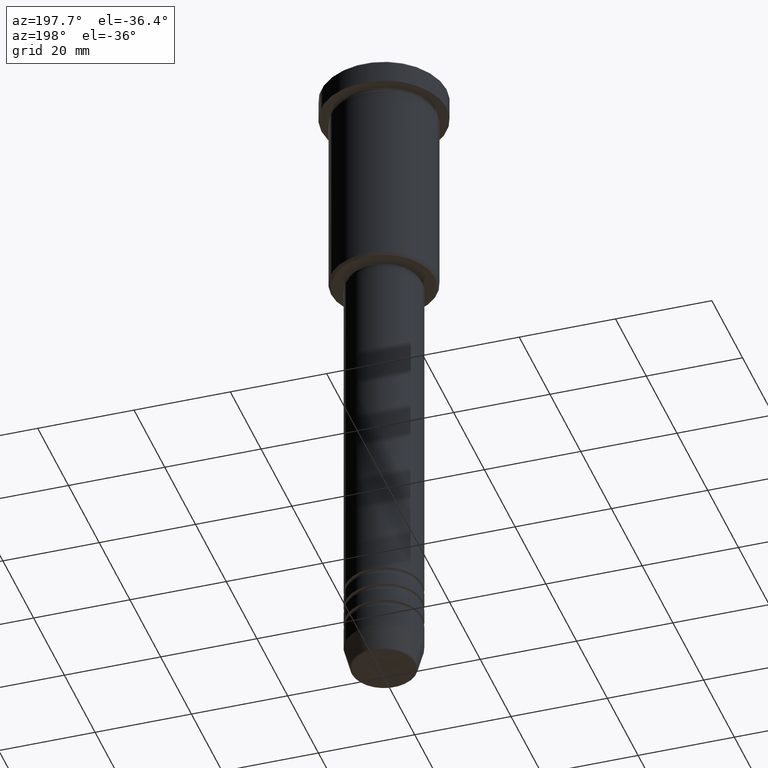
[diagram: clean part render]
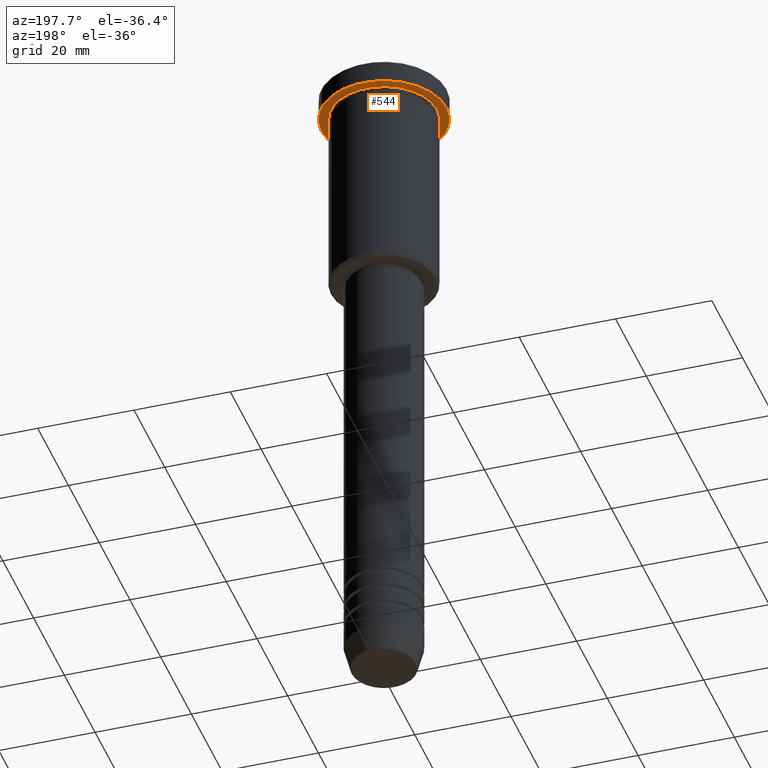
[diagram: same view with one face highlighted and labeled with its STEP entity id]
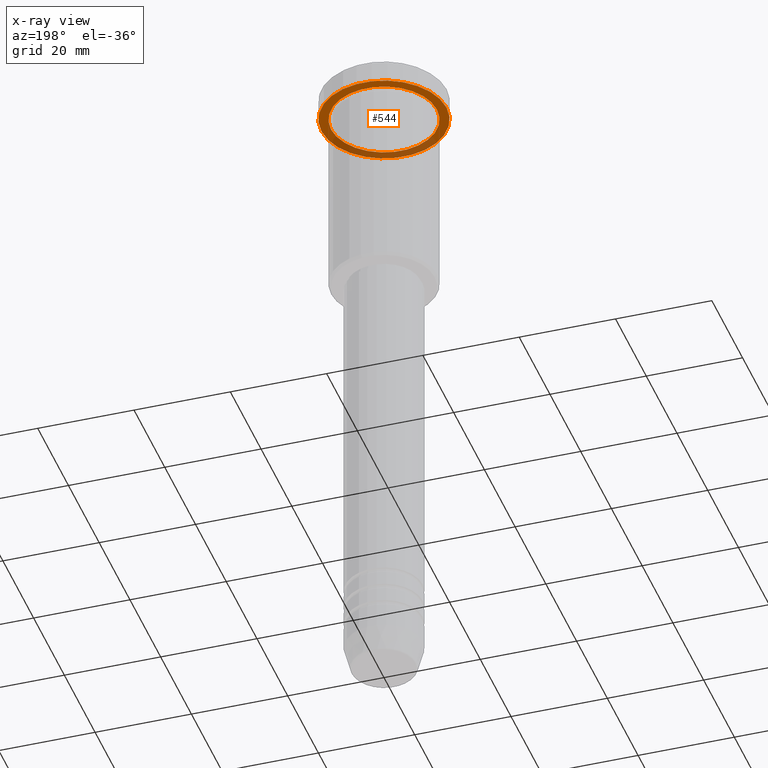
[diagram: x-ray of the same camera — body ghosted, the highlighted face saturated]
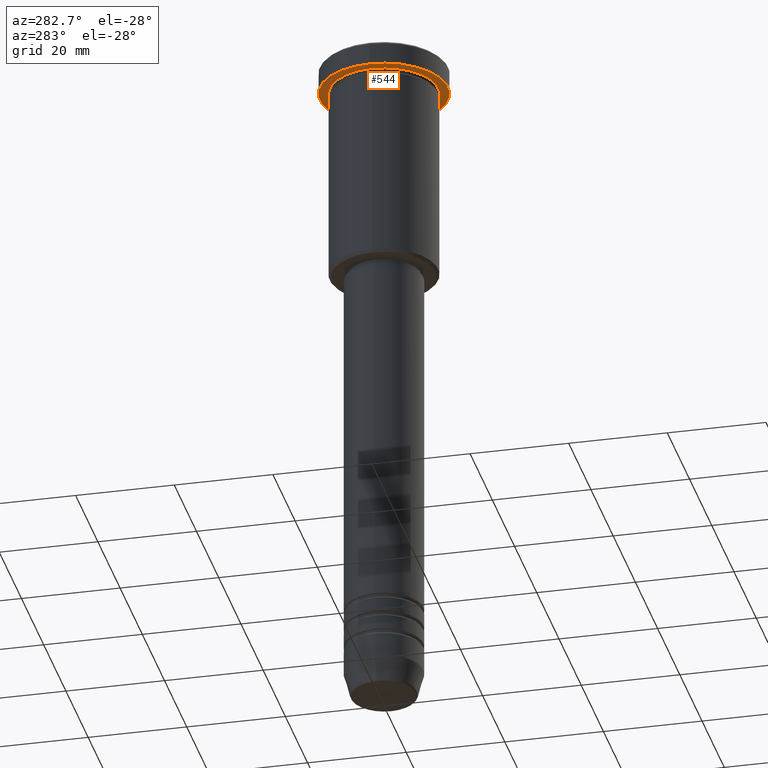
[diagram: same view with one face highlighted and labeled with its STEP entity id]
A machine part, auxiliary view. The second image highlights one B-rep face of the part: STEP entity #544.
The next image is the same camera in x-ray: the body ghosted, the highlighted face saturated — about 31% of this face is hidden behind the body in this view.
A second angle (auxiliary view) of the same face is appended — the face is thin or edge-on in the first view.
In plain terms, the highlighted planar face has unit normal (0, 0, -1).
Its self-contained STEP definition (entity closure, byte-faithful):
#10 = AXIS2_PLACEMENT_3D ( 'NONE', #614, #413, #520 ) ;
#19 = CARTESIAN_POINT ( 'NONE',  ( 0.000000000000000000, 0.000000000000000000, -5.000000000000000000 ) ) ;
#48 = AXIS2_PLACEMENT_3D ( 'NONE', #19, #378, #761 ) ;
#115 = ORIENTED_EDGE ( 'NONE', *, *, #542, .T. ) ;
#121 = CARTESIAN_POINT ( 'NONE',  ( 11.00000000000000000, 1.347111479062088405E-15, -4.999999999999999112 ) ) ;
#131 = DIRECTION ( 'NONE',  ( -0.000000000000000000, -0.000000000000000000, 1.000000000000000000 ) ) ;
#132 = FACE_OUTER_BOUND ( 'NONE', #762, .T. ) ;
#168 = CIRCLE ( 'NONE', #298, 11.00000000000000000 ) ;
#177 = EDGE_CURVE ( 'NONE', #896, #841, #409, .T. ) ;
#187 = VERTEX_POINT ( 'NONE', #121 ) ;
#195 = ORIENTED_EDGE ( 'NONE', *, *, #843, .F. ) ;
#208 = AXIS2_PLACEMENT_3D ( 'NONE', #939, #692, #1047 ) ;
#298 = AXIS2_PLACEMENT_3D ( 'NONE', #623, #131, #1039 ) ;
#322 = PLANE ( 'NONE',  #208 ) ;
#378 = DIRECTION ( 'NONE',  ( -0.000000000000000000, -0.000000000000000000, 1.000000000000000000 ) ) ;
#402 = DIRECTION ( 'NONE',  ( -1.000000000000000000, 0.000000000000000000, 0.000000000000000000 ) ) ;
#409 = CIRCLE ( 'NONE', #48, 13.00000000000000000 ) ;
#413 = DIRECTION ( 'NONE',  ( -0.000000000000000000, -0.000000000000000000, 1.000000000000000000 ) ) ;
#444 = CIRCLE ( 'NONE', #608, 11.00000000000000000 ) ;
#477 = VERTEX_POINT ( 'NONE', #818 ) ;
#520 = DIRECTION ( 'NONE',  ( 1.000000000000000000, 0.000000000000000000, 0.000000000000000000 ) ) ;
#542 = EDGE_CURVE ( 'NONE', #477, #187, #444, .T. ) ;
#544 = ADVANCED_FACE ( 'NONE', ( #768, #132 ), #322, .T. ) ;
#608 = AXIS2_PLACEMENT_3D ( 'NONE', #1118, #1137, #402 ) ;
#609 = CIRCLE ( 'NONE', #10, 13.00000000000000000 ) ;
#614 = CARTESIAN_POINT ( 'NONE',  ( 0.000000000000000000, 0.000000000000000000, -5.000000000000000000 ) ) ;
#617 = CARTESIAN_POINT ( 'NONE',  ( 13.00000000000000000, 0.000000000000000000, -5.000000000000000000 ) ) ;
#618 = EDGE_CURVE ( 'NONE', #187, #477, #168, .T. ) ;
#623 = CARTESIAN_POINT ( 'NONE',  ( 0.000000000000000000, 0.000000000000000000, -5.000000000000000000 ) ) ;
#675 = EDGE_LOOP ( 'NONE', ( #115, #697 ) ) ;
#692 = DIRECTION ( 'NONE',  ( 0.000000000000000000, 0.000000000000000000, -1.000000000000000000 ) ) ;
#697 = ORIENTED_EDGE ( 'NONE', *, *, #618, .T. ) ;
#761 = DIRECTION ( 'NONE',  ( 1.000000000000000000, 0.000000000000000000, 0.000000000000000000 ) ) ;
#762 = EDGE_LOOP ( 'NONE', ( #1090, #195 ) ) ;
#768 = FACE_BOUND ( 'NONE', #675, .T. ) ;
#818 = CARTESIAN_POINT ( 'NONE',  ( -11.00000000000000000, 0.000000000000000000, -4.999999999999999112 ) ) ;
#841 = VERTEX_POINT ( 'NONE', #1157 ) ;
#843 = EDGE_CURVE ( 'NONE', #841, #896, #609, .T. ) ;
#896 = VERTEX_POINT ( 'NONE', #617 ) ;
#939 = CARTESIAN_POINT ( 'NONE',  ( 0.000000000000000000, 13.00000000000000000, -5.000000000000000000 ) ) ;
#1039 = DIRECTION ( 'NONE',  ( -1.000000000000000000, 0.000000000000000000, 0.000000000000000000 ) ) ;
#1047 = DIRECTION ( 'NONE',  ( -1.000000000000000000, 0.000000000000000000, -0.000000000000000000 ) ) ;
#1090 = ORIENTED_EDGE ( 'NONE', *, *, #177, .F. ) ;
#1118 = CARTESIAN_POINT ( 'NONE',  ( 0.000000000000000000, 0.000000000000000000, -5.000000000000000000 ) ) ;
#1137 = DIRECTION ( 'NONE',  ( -0.000000000000000000, -0.000000000000000000, 1.000000000000000000 ) ) ;
#1157 = CARTESIAN_POINT ( 'NONE',  ( -13.00000000000000000, 1.592040838891559095E-15, -5.000000000000000000 ) ) ;